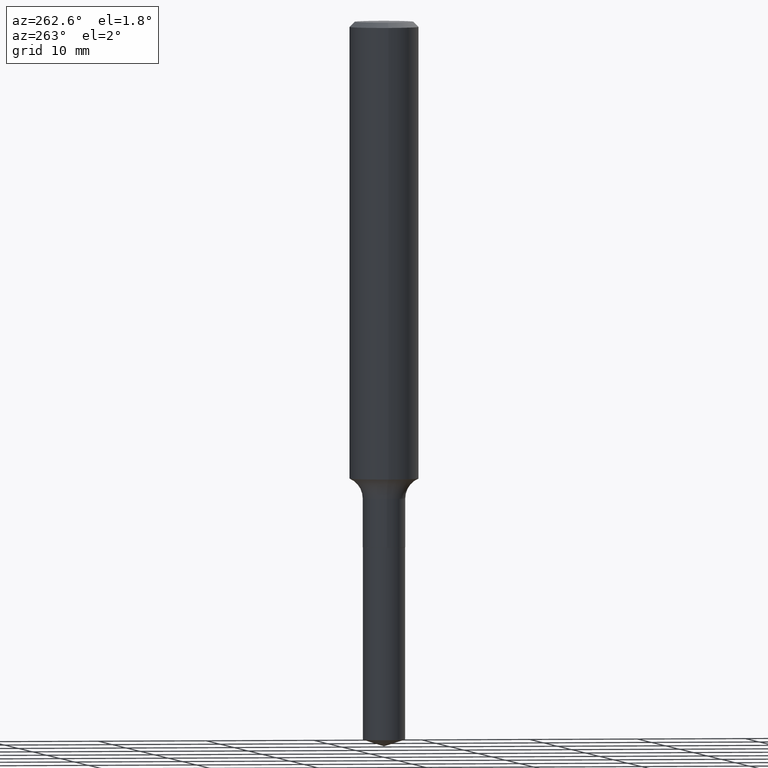
[diagram: clean part render]
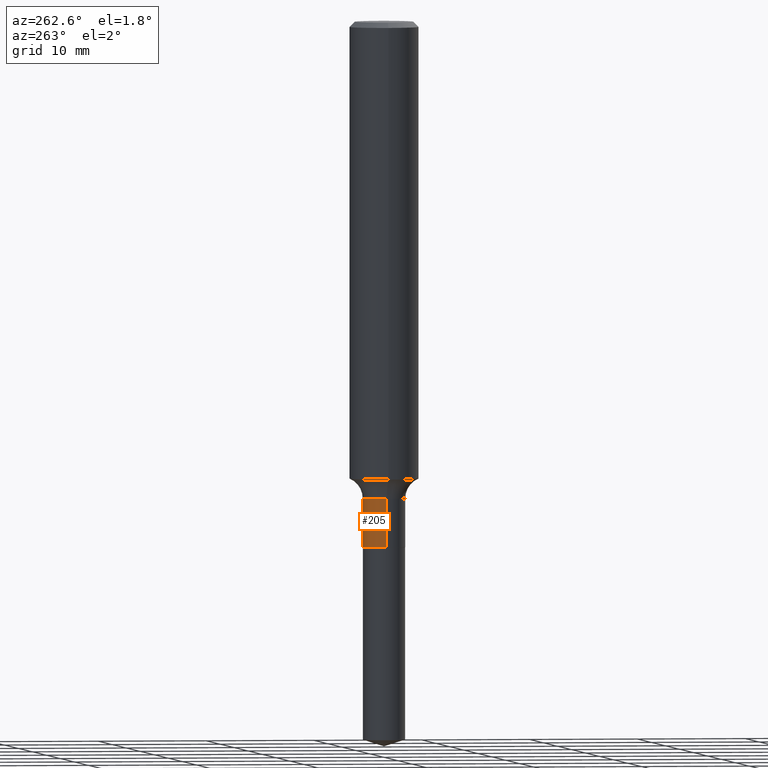
[diagram: same view with one face highlighted and labeled with its STEP entity id]
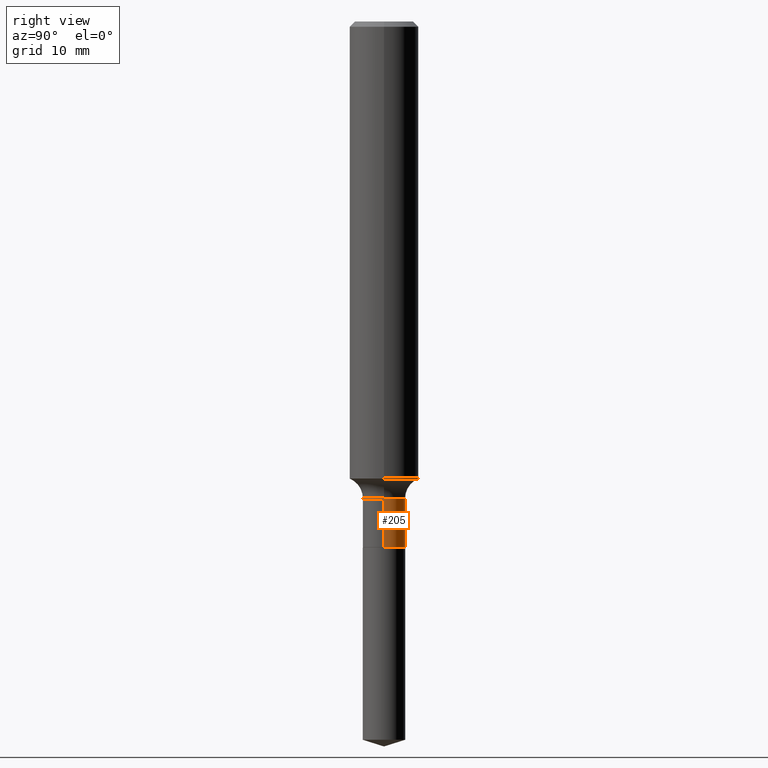
[diagram: same view with one face highlighted and labeled with its STEP entity id]
A machine part, auxiliary view. The second image highlights one B-rep face of the part: STEP entity #205.
A second angle (right view) of the same face is appended — the face is thin or edge-on in the first view.
In plain terms, the highlighted cylindrical surface (edge-blend (fillet) strip) has radius 1.9558 mm, axis along (-0, 0, 1).
Its self-contained STEP definition (entity closure, byte-faithful):
#2 = CIRCLE ( 'NONE', #134, 0.07699999999999997125 ) ;
#13 = EDGE_CURVE ( 'NONE', #137, #343, #199, .T. ) ;
#27 = VERTEX_POINT ( 'NONE', #313 ) ;
#54 = DIRECTION ( 'NONE',  ( -2.445468806185136597E-29, 3.491481338843145583E-15, 1.000000000000000000 ) ) ;
#62 = CARTESIAN_POINT ( 'NONE',  ( 4.223080081401112602E-29, -6.029439124048228051E-15, -1.726900000000000102 ) ) ;
#79 = CARTESIAN_POINT ( 'NONE',  ( -0.07699999999999998512, -5.790619019732800574E-15, -1.903499999999999970 ) ) ;
#89 = VECTOR ( 'NONE', #316, 39.37007874015748143 ) ;
#97 = ORIENTED_EDGE ( 'NONE', *, *, #410, .T. ) ;
#125 = ORIENTED_EDGE ( 'NONE', *, *, #13, .T. ) ;
#129 = VERTEX_POINT ( 'NONE', #164 ) ;
#131 = CARTESIAN_POINT ( 'NONE',  ( -0.07699999999999997125, -5.790619019732800574E-15, -1.726900000000000102 ) ) ;
#134 = AXIS2_PLACEMENT_3D ( 'NONE', #62, #482, #168 ) ;
#137 = VERTEX_POINT ( 'NONE', #79 ) ;
#143 = AXIS2_PLACEMENT_3D ( 'NONE', #478, #54, #293 ) ;
#146 = DIRECTION ( 'NONE',  ( 1.000000000000000000, -6.982962677686271444E-15, 0.000000000000000000 ) ) ;
#164 = CARTESIAN_POINT ( 'NONE',  ( 0.07699999999999998512, -7.183722854669770387E-15, -1.903499999999999970 ) ) ;
#168 = DIRECTION ( 'NONE',  ( 1.000000000000000000, -6.982962677686273021E-15, 0.000000000000000000 ) ) ;
#190 = EDGE_CURVE ( 'NONE', #129, #27, #369, .T. ) ;
#199 = LINE ( 'NONE', #271, #89 ) ;
#205 = ADVANCED_FACE ( 'NONE', ( #439 ), #291, .T. ) ;
#213 = EDGE_CURVE ( 'NONE', #27, #343, #2, .T. ) ;
#214 = CARTESIAN_POINT ( 'NONE',  ( 0.07699999999999998512, -5.376881261818424263E-16, 3.754656117362870056E-30 ) ) ;
#217 = EDGE_LOOP ( 'NONE', ( #97, #125, #405, #303 ) ) ;
#219 = VECTOR ( 'NONE', #372, 39.37007874015748143 ) ;
#226 = DIRECTION ( 'NONE',  ( -2.445468806185136597E-29, 3.491481338843145583E-15, 1.000000000000000000 ) ) ;
#243 = AXIS2_PLACEMENT_3D ( 'NONE', #337, #226, #146 ) ;
#271 = CARTESIAN_POINT ( 'NONE',  ( -0.07699999999999998512, 5.471179065352770374E-16, -3.787580019496277076E-30 ) ) ;
#291 = CYLINDRICAL_SURFACE ( 'NONE', #143, 0.07699999999999998512 ) ;
#293 = DIRECTION ( 'NONE',  ( 1.000000000000000000, -6.982962677686266711E-15, 4.876176775795936353E-29 ) ) ;
#303 = ORIENTED_EDGE ( 'NONE', *, *, #190, .F. ) ;
#313 = CARTESIAN_POINT ( 'NONE',  ( 0.07699999999999997125, -6.567127250230070871E-15, -1.726900000000000102 ) ) ;
#316 = DIRECTION ( 'NONE',  ( -2.445468806185136877E-29, 3.491481338843145188E-15, 1.000000000000000000 ) ) ;
#337 = CARTESIAN_POINT ( 'NONE',  ( 4.654949872573407911E-29, -6.646034728487927566E-15, -1.903499999999999970 ) ) ;
#343 = VERTEX_POINT ( 'NONE', #131 ) ;
#369 = LINE ( 'NONE', #214, #219 ) ;
#372 = DIRECTION ( 'NONE',  ( -2.445468806185136877E-29, 3.491481338843145188E-15, 1.000000000000000000 ) ) ;
#405 = ORIENTED_EDGE ( 'NONE', *, *, #213, .F. ) ;
#410 = EDGE_CURVE ( 'NONE', #129, #137, #473, .T. ) ;
#439 = FACE_OUTER_BOUND ( 'NONE', #217, .T. ) ;
#473 = CIRCLE ( 'NONE', #243, 0.07699999999999998512 ) ;
#478 = CARTESIAN_POINT ( 'NONE',  ( 0.000000000000000000, 0.000000000000000000, 0.000000000000000000 ) ) ;
#482 = DIRECTION ( 'NONE',  ( -2.445468806185136597E-29, 3.491481338843145583E-15, 1.000000000000000000 ) ) ;